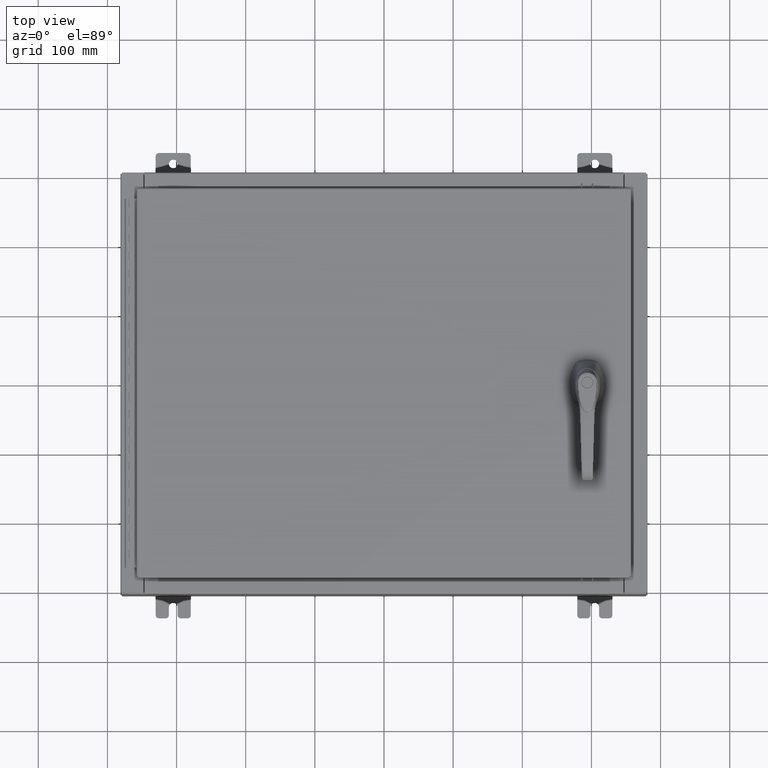
[diagram: clean part render]
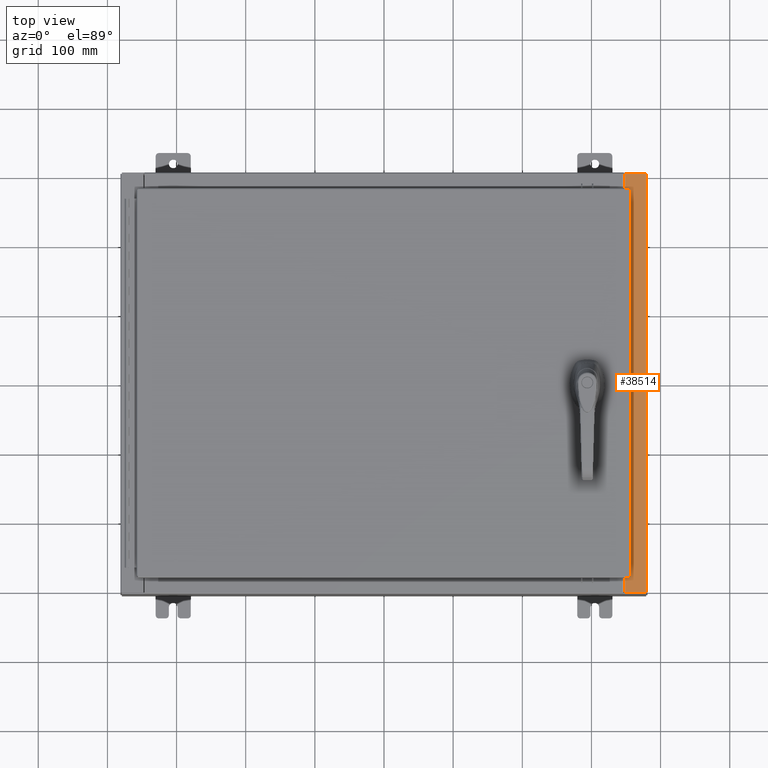
[diagram: same view with one face highlighted and labeled with its STEP entity id]
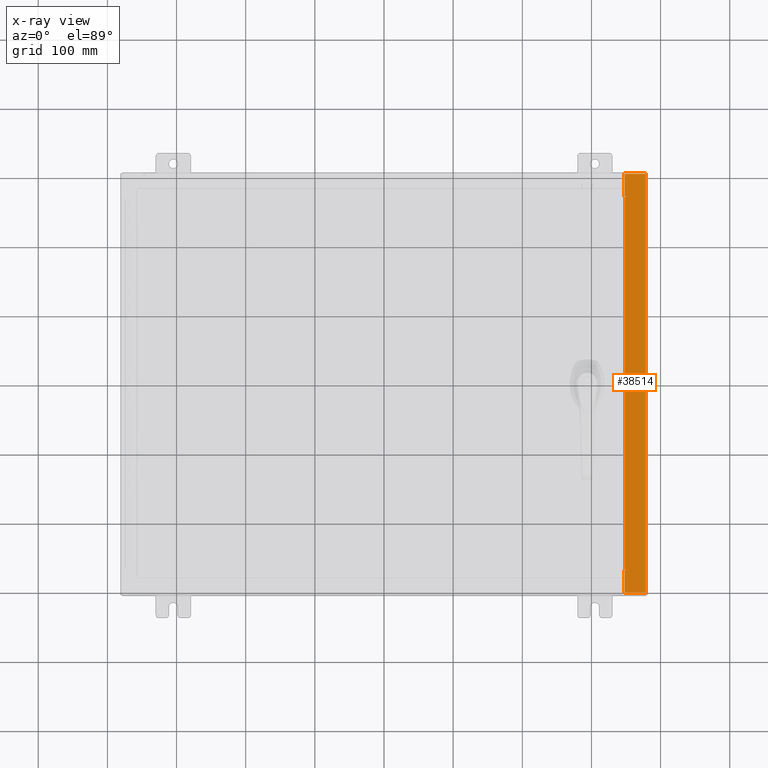
[diagram: x-ray of the same camera — body ghosted, the highlighted face saturated]
A machine part, top view. The second image highlights one B-rep face of the part: STEP entity #38514.
The next image is the same camera in x-ray: the body ghosted, the highlighted face saturated — about 0% of this face is hidden behind the body in this view.
In plain terms, the highlighted planar face has unit normal (-0, -0, -1).
Its self-contained STEP definition (entity closure, byte-faithful):
#576 = ORIENTED_EDGE ( 'NONE', *, *, #76883, .F. ) ;
#2225 = VERTEX_POINT ( 'NONE', #39904 ) ;
#4228 = LINE ( 'NONE', #11212, #70696 ) ;
#4478 = DIRECTION ( 'NONE',  ( -9.163200904511462000E-017, -1.000000000000000000, 4.581600452255787700E-017 ) ) ;
#6358 = DIRECTION ( 'NONE',  ( -4.379057701015054300E-047, -1.000000000000000000, 4.581600452255731000E-017 ) ) ;
#6983 = VECTOR ( 'NONE', #46912, 39.37007874015748100 ) ;
#7087 = LINE ( 'NONE', #57117, #70817 ) ;
#7778 = EDGE_CURVE ( 'NONE', #68341, #10973, #73993, .T. ) ;
#8013 = CARTESIAN_POINT ( 'NONE',  ( 14.91230000000003000, 11.92529999999999600, 7.925300000000000000 ) ) ;
#8468 = CARTESIAN_POINT ( 'NONE',  ( 13.75005000000002800, 10.61242499999999300, 7.925300000000011600 ) ) ;
#9836 = ORIENTED_EDGE ( 'NONE', *, *, #61709, .T. ) ;
#10973 = VERTEX_POINT ( 'NONE', #34244 ) ;
#11212 = CARTESIAN_POINT ( 'NONE',  ( 4.972393517341157600E-014, 11.92529999999999600, 7.925300000000094200 ) ) ;
#11485 = ORIENTED_EDGE ( 'NONE', *, *, #100395, .F. ) ;
#12136 = VERTEX_POINT ( 'NONE', #72961 ) ;
#12394 = LINE ( 'NONE', #98851, #6983 ) ;
#14190 = LINE ( 'NONE', #66612, #80612 ) ;
#15235 = ORIENTED_EDGE ( 'NONE', *, *, #54044, .F. ) ;
#15372 = VECTOR ( 'NONE', #82151, 39.37007874015748100 ) ;
#15938 = CARTESIAN_POINT ( 'NONE',  ( 13.71270000000003000, -10.59375000000000200, 7.925300000000011600 ) ) ;
#16091 = EDGE_CURVE ( 'NONE', #2225, #68341, #12394, .T. ) ;
#17200 = DIRECTION ( 'NONE',  ( 1.000000000000000000, 0.0000000000000000000, 0.0000000000000000000 ) ) ;
#17798 = ORIENTED_EDGE ( 'NONE', *, *, #25925, .F. ) ;
#18288 = ORIENTED_EDGE ( 'NONE', *, *, #103262, .F. ) ;
#19597 = LINE ( 'NONE', #88461, #80557 ) ;
#24107 = VECTOR ( 'NONE', #103218, 39.37007874015748100 ) ;
#24388 = VERTEX_POINT ( 'NONE', #41189 ) ;
#25695 = VERTEX_POINT ( 'NONE', #83012 ) ;
#25925 = EDGE_CURVE ( 'NONE', #46752, #2225, #79197, .T. ) ;
#26195 = CARTESIAN_POINT ( 'NONE',  ( 14.91230000000003000, -11.92530000000000400, 7.925300000000000900 ) ) ;
#26751 = DIRECTION ( 'NONE',  ( -4.379057701015054300E-047, -1.000000000000000000, 4.581600452255731000E-017 ) ) ;
#31793 = CARTESIAN_POINT ( 'NONE',  ( 13.69970000000003000, -11.92530000000000400, 7.925300000000009800 ) ) ;
#34244 = CARTESIAN_POINT ( 'NONE',  ( 13.75005000000002800, 10.63109999999999300, 7.925300000000007100 ) ) ;
#35480 = CARTESIAN_POINT ( 'NONE',  ( 13.75005000000002800, -10.61242500000000200, 7.925300000000011600 ) ) ;
#38514 = ADVANCED_FACE ( 'NONE', ( #103399 ), #70819, .F. ) ;
#39904 = CARTESIAN_POINT ( 'NONE',  ( 13.71270000000003000, 10.59374999999999300, 7.925300000000011600 ) ) ;
#41111 = LINE ( 'NONE', #73460, #15372 ) ;
#41181 = ORIENTED_EDGE ( 'NONE', *, *, #70890, .T. ) ;
#41189 = CARTESIAN_POINT ( 'NONE',  ( 13.75005000000002800, -10.59375000000000200, 7.925300000000007100 ) ) ;
#42445 = VERTEX_POINT ( 'NONE', #26195 ) ;
#42545 = CARTESIAN_POINT ( 'NONE',  ( 13.69970000000003000, -10.63110000000000200, 7.925300000000010700 ) ) ;
#42965 = ORIENTED_EDGE ( 'NONE', *, *, #16091, .F. ) ;
#43202 = CARTESIAN_POINT ( 'NONE',  ( 13.71270000000003000, -10.59375000000000200, 7.925300000000011600 ) ) ;
#44155 = DIRECTION ( 'NONE',  ( 1.000000000000000000, 0.0000000000000000000, 0.0000000000000000000 ) ) ;
#44612 = DIRECTION ( 'NONE',  ( -6.241167087353086200E-015, -4.581600452255731000E-017, -1.000000000000000000 ) ) ;
#46752 = VERTEX_POINT ( 'NONE', #43202 ) ;
#46912 = DIRECTION ( 'NONE',  ( 1.000000000000000000, 0.0000000000000000000, 0.0000000000000000000 ) ) ;
#47525 = DIRECTION ( 'NONE',  ( -1.000000000000000000, 0.0000000000000000000, 6.241167087353087800E-015 ) ) ;
#48360 = CARTESIAN_POINT ( 'NONE',  ( 13.75005000000002800, 10.63109999999999300, 7.925300000000011600 ) ) ;
#50710 = VECTOR ( 'NONE', #50754, 39.37007874015748100 ) ;
#50754 = DIRECTION ( 'NONE',  ( -0.0000000000000000000, 1.000000000000000000, -0.0000000000000000000 ) ) ;
#51570 = EDGE_CURVE ( 'NONE', #24388, #46752, #41111, .T. ) ;
#52563 = VERTEX_POINT ( 'NONE', #66663 ) ;
#52666 = AXIS2_PLACEMENT_3D ( 'NONE', #62073, #44612, #79511 ) ;
#54044 = EDGE_CURVE ( 'NONE', #25695, #24388, #108636, .T. ) ;
#55103 = CARTESIAN_POINT ( 'NONE',  ( 13.69970000000003000, -10.63110000000000200, 7.925300000000008900 ) ) ;
#57117 = CARTESIAN_POINT ( 'NONE',  ( 14.91230000000002900, -11.92530000000000400, 7.925300000000000900 ) ) ;
#57550 = ORIENTED_EDGE ( 'NONE', *, *, #108345, .T. ) ;
#58532 = CARTESIAN_POINT ( 'NONE',  ( 13.75005000000002800, 10.59374999999999300, 7.925300000000007100 ) ) ;
#58946 = VERTEX_POINT ( 'NONE', #55103 ) ;
#61634 = LINE ( 'NONE', #48360, #79270 ) ;
#61709 = EDGE_CURVE ( 'NONE', #52563, #12136, #14190, .T. ) ;
#62073 = CARTESIAN_POINT ( 'NONE',  ( 4.972393517341157600E-014, 3.631055806426276900E-016, 7.925300000000094200 ) ) ;
#66612 = CARTESIAN_POINT ( 'NONE',  ( 13.69970000000003000, 3.631055806426237500E-016, 7.925300000000008900 ) ) ;
#66663 = CARTESIAN_POINT ( 'NONE',  ( 13.69970000000003000, 11.92529999999999600, 7.925300000000008900 ) ) ;
#68341 = VERTEX_POINT ( 'NONE', #58532 ) ;
#69111 = DIRECTION ( 'NONE',  ( 6.241167087353086200E-015, 4.581600452255730400E-017, 1.000000000000000000 ) ) ;
#70176 = AXIS2_PLACEMENT_3D ( 'NONE', #35480, #96104, #44155 ) ;
#70696 = VECTOR ( 'NONE', #47525, 39.37007874015748100 ) ;
#70817 = VECTOR ( 'NONE', #4478, 39.37007874015748100 ) ;
#70819 = PLANE ( 'NONE',  #52666 ) ;
#70890 = EDGE_CURVE ( 'NONE', #71309, #52563, #4228, .T. ) ;
#71309 = VERTEX_POINT ( 'NONE', #8013 ) ;
#72961 = CARTESIAN_POINT ( 'NONE',  ( 13.69970000000003000, 10.63109999999999500, 7.925300000000008900 ) ) ;
#73460 = CARTESIAN_POINT ( 'NONE',  ( 13.75005000000002800, -10.59375000000000200, 7.925300000000011600 ) ) ;
#73993 = CIRCLE ( 'NONE', #74490, 0.01867499999999949400 ) ;
#74490 = AXIS2_PLACEMENT_3D ( 'NONE', #8468, #69111, #17200 ) ;
#75801 = VERTEX_POINT ( 'NONE', #31793 ) ;
#76883 = EDGE_CURVE ( 'NONE', #58946, #25695, #93247, .T. ) ;
#79197 = LINE ( 'NONE', #15938, #50710 ) ;
#79270 = VECTOR ( 'NONE', #108604, 39.37007874015748100 ) ;
#79511 = DIRECTION ( 'NONE',  ( -1.000000000000000000, 0.0000000000000000000, 6.241167087353086200E-015 ) ) ;
#80557 = VECTOR ( 'NONE', #105877, 39.37007874015748100 ) ;
#80612 = VECTOR ( 'NONE', #6358, 39.37007874015748100 ) ;
#80736 = ORIENTED_EDGE ( 'NONE', *, *, #7778, .F. ) ;
#82151 = DIRECTION ( 'NONE',  ( -1.000000000000000000, 0.0000000000000000000, 0.0000000000000000000 ) ) ;
#83012 = CARTESIAN_POINT ( 'NONE',  ( 13.75005000000002800, -10.63110000000000200, 7.925300000000008900 ) ) ;
#83563 = ORIENTED_EDGE ( 'NONE', *, *, #51570, .F. ) ;
#83878 = EDGE_LOOP ( 'NONE', ( #576, #57550, #107617, #18288, #41181, #9836, #11485, #80736, #42965, #17798, #83563, #15235 ) ) ;
#88461 = CARTESIAN_POINT ( 'NONE',  ( 4.972393517341157600E-014, -11.92530000000000400, 7.925300000000095000 ) ) ;
#93247 = LINE ( 'NONE', #42545, #24107 ) ;
#95953 = VECTOR ( 'NONE', #26751, 39.37007874015748100 ) ;
#96104 = DIRECTION ( 'NONE',  ( 6.241167087353086200E-015, 4.581600452255730400E-017, 1.000000000000000000 ) ) ;
#98670 = LINE ( 'NONE', #104385, #95953 ) ;
#98851 = CARTESIAN_POINT ( 'NONE',  ( 13.71270000000003000, 10.59374999999999300, 7.925300000000011600 ) ) ;
#100395 = EDGE_CURVE ( 'NONE', #10973, #12136, #61634, .T. ) ;
#100769 = EDGE_CURVE ( 'NONE', #75801, #42445, #19597, .T. ) ;
#103218 = DIRECTION ( 'NONE',  ( 1.000000000000000000, 0.0000000000000000000, 2.170286390200049500E-014 ) ) ;
#103262 = EDGE_CURVE ( 'NONE', #71309, #42445, #7087, .T. ) ;
#103399 = FACE_OUTER_BOUND ( 'NONE', #83878, .T. ) ;
#104385 = CARTESIAN_POINT ( 'NONE',  ( 13.69970000000003000, 3.631055806426237500E-016, 7.925300000000008900 ) ) ;
#105877 = DIRECTION ( 'NONE',  ( 1.000000000000000000, 0.0000000000000000000, -6.241167087353087800E-015 ) ) ;
#107617 = ORIENTED_EDGE ( 'NONE', *, *, #100769, .T. ) ;
#108345 = EDGE_CURVE ( 'NONE', #58946, #75801, #98670, .T. ) ;
#108604 = DIRECTION ( 'NONE',  ( -1.000000000000000000, 0.0000000000000000000, -2.170286390200049500E-014 ) ) ;
#108636 = CIRCLE ( 'NONE', #70176, 0.01867499999999949400 ) ;